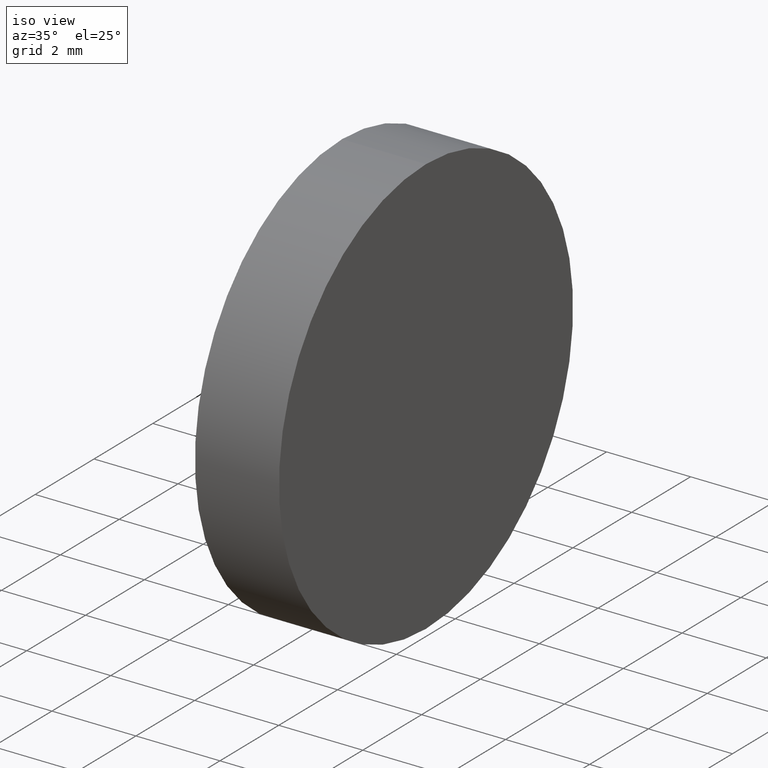
[diagram: clean part render]
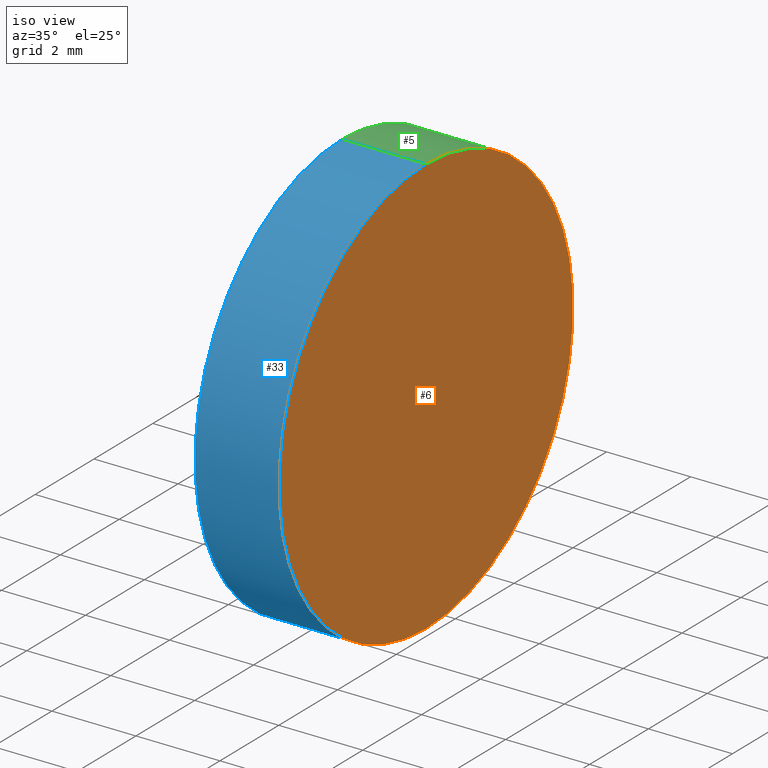
[diagram: same view with three faces highlighted in distinct colors, each labeled with its STEP entity id]
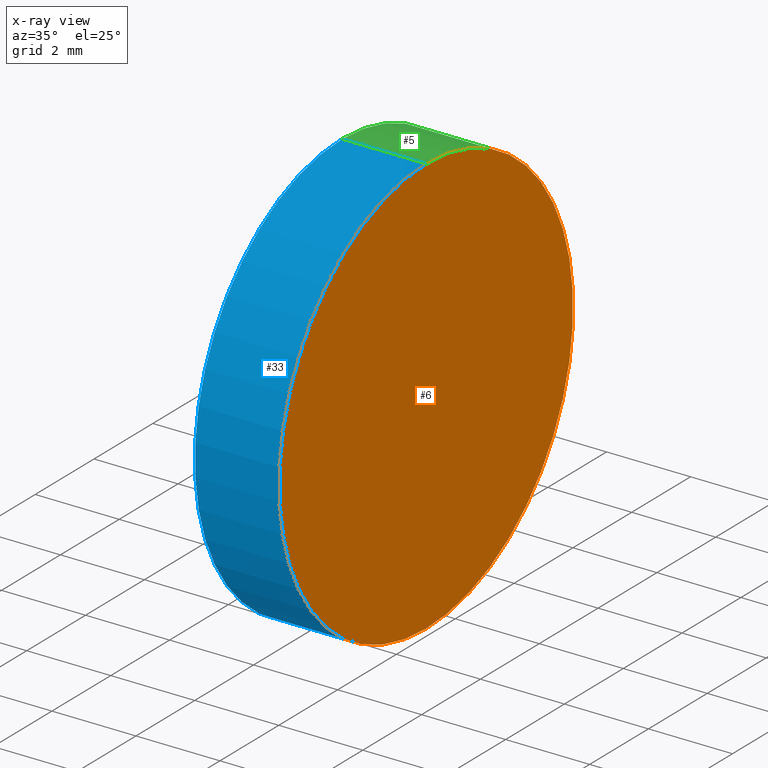
[diagram: x-ray of the same camera — body ghosted, the three highlighted faces saturated]
A machine part, iso view with three faces highlighted in distinct colors.
The next image is the same camera in x-ray (body ghosted, the three faces saturated) — at least one of them is partly hidden behind the body in this view.
Their STEP definitions:

[orange] entity #6 — the highlighted planar face has unit normal (-1, 0, -0).
#6 = ADVANCED_FACE ( 'NONE', ( #41 ), #122, .F. ) ;
#20 = CARTESIAN_POINT ( 'NONE',  ( 106.0628561970244000, 30.91727173960616800, 0.0000000000000000000 ) ) ;
#26 = CIRCLE ( 'NONE', #112, 4.999999999999993800 ) ;
#27 = CIRCLE ( 'NONE', #108, 4.999999999999993800 ) ;
#41 = FACE_OUTER_BOUND ( 'NONE', #79, .T. ) ;
#44 = ORIENTED_EDGE ( 'NONE', *, *, #78, .F. ) ;
#48 = CARTESIAN_POINT ( 'NONE',  ( 106.0628561970244000, 30.91727173960616400, 0.0000000000000000000 ) ) ;
#54 = AXIS2_PLACEMENT_3D ( 'NONE', #48, #106, #68 ) ;
#68 = DIRECTION ( 'NONE',  ( -0.0000000000000000000, 0.0000000000000000000, 1.000000000000000000 ) ) ;
#78 = EDGE_CURVE ( 'NONE', #139, #92, #27, .T. ) ;
#79 = EDGE_LOOP ( 'NONE', ( #44, #87 ) ) ;
#87 = ORIENTED_EDGE ( 'NONE', *, *, #111, .F. ) ;
#92 = VERTEX_POINT ( 'NONE', #126 ) ;
#98 = DIRECTION ( 'NONE',  ( 0.0000000000000000000, 0.0000000000000000000, 1.000000000000000000 ) ) ;
#106 = DIRECTION ( 'NONE',  ( -1.000000000000000000, 0.0000000000000000000, -0.0000000000000000000 ) ) ;
#107 = CARTESIAN_POINT ( 'NONE',  ( 106.0628561970244000, 30.91727173960616800, 0.0000000000000000000 ) ) ;
#108 = AXIS2_PLACEMENT_3D ( 'NONE', #20, #124, #129 ) ;
#110 = CARTESIAN_POINT ( 'NONE',  ( 106.0628561970244000, 30.91727173960616800, 4.999999999999993800 ) ) ;
#111 = EDGE_CURVE ( 'NONE', #92, #139, #26, .T. ) ;
#112 = AXIS2_PLACEMENT_3D ( 'NONE', #107, #117, #98 ) ;
#117 = DIRECTION ( 'NONE',  ( -1.000000000000000000, -0.0000000000000000000, -0.0000000000000000000 ) ) ;
#122 = PLANE ( 'NONE',  #54 ) ;
#124 = DIRECTION ( 'NONE',  ( -1.000000000000000000, -0.0000000000000000000, -0.0000000000000000000 ) ) ;
#126 = CARTESIAN_POINT ( 'NONE',  ( 106.0628561970244000, 30.91727173960616800, -4.999999999999993800 ) ) ;
#129 = DIRECTION ( 'NONE',  ( 0.0000000000000000000, 0.0000000000000000000, 1.000000000000000000 ) ) ;
#139 = VERTEX_POINT ( 'NONE', #110 ) ;

[blue] entity #33 — the highlighted cylindrical surface (partial cylindrical patch) has radius 5 mm, axis along (-1, -0, -0).
#1 = FACE_OUTER_BOUND ( 'NONE', #66, .T. ) ;
#2 = EDGE_CURVE ( 'NONE', #92, #76, #18, .T. ) ;
#3 = CARTESIAN_POINT ( 'NONE',  ( 104.0628561970244000, 30.91727173960616800, -4.999999999999993800 ) ) ;
#11 = DIRECTION ( 'NONE',  ( -1.000000000000000000, -0.0000000000000000000, -0.0000000000000000000 ) ) ;
#13 = DIRECTION ( 'NONE',  ( 0.0000000000000000000, 0.0000000000000000000, 1.000000000000000000 ) ) ;
#15 = EDGE_CURVE ( 'NONE', #139, #42, #133, .T. ) ;
#17 = DIRECTION ( 'NONE',  ( -1.000000000000000000, -0.0000000000000000000, -0.0000000000000000000 ) ) ;
#18 = LINE ( 'NONE', #132, #53 ) ;
#22 = ORIENTED_EDGE ( 'NONE', *, *, #111, .T. ) ;
#26 = CIRCLE ( 'NONE', #112, 4.999999999999993800 ) ;
#32 = DIRECTION ( 'NONE',  ( -1.000000000000000000, -0.0000000000000000000, -0.0000000000000000000 ) ) ;
#33 = ADVANCED_FACE ( 'NONE', ( #1 ), #65, .T. ) ;
#42 = VERTEX_POINT ( 'NONE', #81 ) ;
#52 = AXIS2_PLACEMENT_3D ( 'NONE', #138, #100, #13 ) ;
#53 = VECTOR ( 'NONE', #32, 1000.000000000000000 ) ;
#59 = ORIENTED_EDGE ( 'NONE', *, *, #120, .F. ) ;
#65 = CYLINDRICAL_SURFACE ( 'NONE', #93, 4.999999999999993800 ) ;
#66 = EDGE_LOOP ( 'NONE', ( #80, #22, #103, #59 ) ) ;
#76 = VERTEX_POINT ( 'NONE', #3 ) ;
#80 = ORIENTED_EDGE ( 'NONE', *, *, #2, .F. ) ;
#81 = CARTESIAN_POINT ( 'NONE',  ( 104.0628561970244000, 30.91727173960616800, 4.999999999999993800 ) ) ;
#92 = VERTEX_POINT ( 'NONE', #126 ) ;
#93 = AXIS2_PLACEMENT_3D ( 'NONE', #114, #11, #94 ) ;
#94 = DIRECTION ( 'NONE',  ( 0.0000000000000000000, 0.0000000000000000000, 1.000000000000000000 ) ) ;
#96 = CARTESIAN_POINT ( 'NONE',  ( 101.6003207970464200, 30.91727173960616800, 4.999999999999993800 ) ) ;
#97 = CIRCLE ( 'NONE', #52, 4.999999999999993800 ) ;
#98 = DIRECTION ( 'NONE',  ( 0.0000000000000000000, 0.0000000000000000000, 1.000000000000000000 ) ) ;
#100 = DIRECTION ( 'NONE',  ( -1.000000000000000000, -0.0000000000000000000, -0.0000000000000000000 ) ) ;
#103 = ORIENTED_EDGE ( 'NONE', *, *, #15, .T. ) ;
#107 = CARTESIAN_POINT ( 'NONE',  ( 106.0628561970244000, 30.91727173960616800, 0.0000000000000000000 ) ) ;
#110 = CARTESIAN_POINT ( 'NONE',  ( 106.0628561970244000, 30.91727173960616800, 4.999999999999993800 ) ) ;
#111 = EDGE_CURVE ( 'NONE', #92, #139, #26, .T. ) ;
#112 = AXIS2_PLACEMENT_3D ( 'NONE', #107, #117, #98 ) ;
#114 = CARTESIAN_POINT ( 'NONE',  ( 101.6003207970464200, 30.91727173960616800, 0.0000000000000000000 ) ) ;
#117 = DIRECTION ( 'NONE',  ( -1.000000000000000000, -0.0000000000000000000, -0.0000000000000000000 ) ) ;
#120 = EDGE_CURVE ( 'NONE', #76, #42, #97, .T. ) ;
#126 = CARTESIAN_POINT ( 'NONE',  ( 106.0628561970244000, 30.91727173960616800, -4.999999999999993800 ) ) ;
#131 = VECTOR ( 'NONE', #17, 1000.000000000000000 ) ;
#132 = CARTESIAN_POINT ( 'NONE',  ( 101.6003207970464200, 30.91727173960616800, -4.999999999999993800 ) ) ;
#133 = LINE ( 'NONE', #96, #131 ) ;
#138 = CARTESIAN_POINT ( 'NONE',  ( 104.0628561970244000, 30.91727173960616800, 0.0000000000000000000 ) ) ;
#139 = VERTEX_POINT ( 'NONE', #110 ) ;

[green] entity #5 — the highlighted cylindrical surface (partial cylindrical patch) has radius 5 mm, axis along (-1, -0, -0).
#2 = EDGE_CURVE ( 'NONE', #92, #76, #18, .T. ) ;
#3 = CARTESIAN_POINT ( 'NONE',  ( 104.0628561970244000, 30.91727173960616800, -4.999999999999993800 ) ) ;
#5 = ADVANCED_FACE ( 'NONE', ( #63 ), #21, .T. ) ;
#14 = AXIS2_PLACEMENT_3D ( 'NONE', #69, #113, #82 ) ;
#15 = EDGE_CURVE ( 'NONE', #139, #42, #133, .T. ) ;
#16 = CARTESIAN_POINT ( 'NONE',  ( 104.0628561970244000, 30.91727173960616800, 0.0000000000000000000 ) ) ;
#17 = DIRECTION ( 'NONE',  ( -1.000000000000000000, -0.0000000000000000000, -0.0000000000000000000 ) ) ;
#18 = LINE ( 'NONE', #132, #53 ) ;
#20 = CARTESIAN_POINT ( 'NONE',  ( 106.0628561970244000, 30.91727173960616800, 0.0000000000000000000 ) ) ;
#21 = CYLINDRICAL_SURFACE ( 'NONE', #14, 4.999999999999993800 ) ;
#24 = AXIS2_PLACEMENT_3D ( 'NONE', #16, #56, #31 ) ;
#25 = ORIENTED_EDGE ( 'NONE', *, *, #78, .T. ) ;
#27 = CIRCLE ( 'NONE', #108, 4.999999999999993800 ) ;
#31 = DIRECTION ( 'NONE',  ( 0.0000000000000000000, 0.0000000000000000000, 1.000000000000000000 ) ) ;
#32 = DIRECTION ( 'NONE',  ( -1.000000000000000000, -0.0000000000000000000, -0.0000000000000000000 ) ) ;
#42 = VERTEX_POINT ( 'NONE', #81 ) ;
#50 = ORIENTED_EDGE ( 'NONE', *, *, #60, .F. ) ;
#53 = VECTOR ( 'NONE', #32, 1000.000000000000000 ) ;
#55 = ORIENTED_EDGE ( 'NONE', *, *, #15, .F. ) ;
#56 = DIRECTION ( 'NONE',  ( -1.000000000000000000, -0.0000000000000000000, -0.0000000000000000000 ) ) ;
#60 = EDGE_CURVE ( 'NONE', #42, #76, #101, .T. ) ;
#63 = FACE_OUTER_BOUND ( 'NONE', #105, .T. ) ;
#69 = CARTESIAN_POINT ( 'NONE',  ( 101.6003207970464200, 30.91727173960616800, 0.0000000000000000000 ) ) ;
#76 = VERTEX_POINT ( 'NONE', #3 ) ;
#78 = EDGE_CURVE ( 'NONE', #139, #92, #27, .T. ) ;
#81 = CARTESIAN_POINT ( 'NONE',  ( 104.0628561970244000, 30.91727173960616800, 4.999999999999993800 ) ) ;
#82 = DIRECTION ( 'NONE',  ( 0.0000000000000000000, 0.0000000000000000000, 1.000000000000000000 ) ) ;
#89 = ORIENTED_EDGE ( 'NONE', *, *, #2, .T. ) ;
#92 = VERTEX_POINT ( 'NONE', #126 ) ;
#96 = CARTESIAN_POINT ( 'NONE',  ( 101.6003207970464200, 30.91727173960616800, 4.999999999999993800 ) ) ;
#101 = CIRCLE ( 'NONE', #24, 4.999999999999993800 ) ;
#105 = EDGE_LOOP ( 'NONE', ( #25, #89, #50, #55 ) ) ;
#108 = AXIS2_PLACEMENT_3D ( 'NONE', #20, #124, #129 ) ;
#110 = CARTESIAN_POINT ( 'NONE',  ( 106.0628561970244000, 30.91727173960616800, 4.999999999999993800 ) ) ;
#113 = DIRECTION ( 'NONE',  ( -1.000000000000000000, -0.0000000000000000000, -0.0000000000000000000 ) ) ;
#124 = DIRECTION ( 'NONE',  ( -1.000000000000000000, -0.0000000000000000000, -0.0000000000000000000 ) ) ;
#126 = CARTESIAN_POINT ( 'NONE',  ( 106.0628561970244000, 30.91727173960616800, -4.999999999999993800 ) ) ;
#129 = DIRECTION ( 'NONE',  ( 0.0000000000000000000, 0.0000000000000000000, 1.000000000000000000 ) ) ;
#131 = VECTOR ( 'NONE', #17, 1000.000000000000000 ) ;
#132 = CARTESIAN_POINT ( 'NONE',  ( 101.6003207970464200, 30.91727173960616800, -4.999999999999993800 ) ) ;
#133 = LINE ( 'NONE', #96, #131 ) ;
#139 = VERTEX_POINT ( 'NONE', #110 ) ;